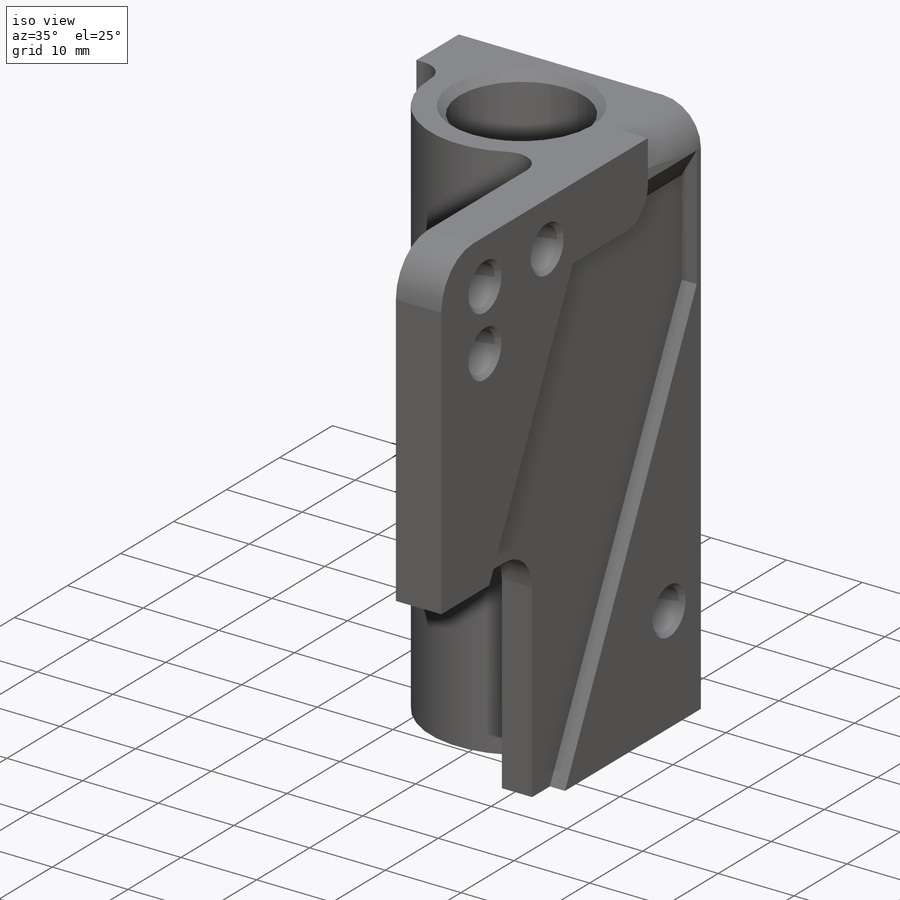
[diagram: iso view]
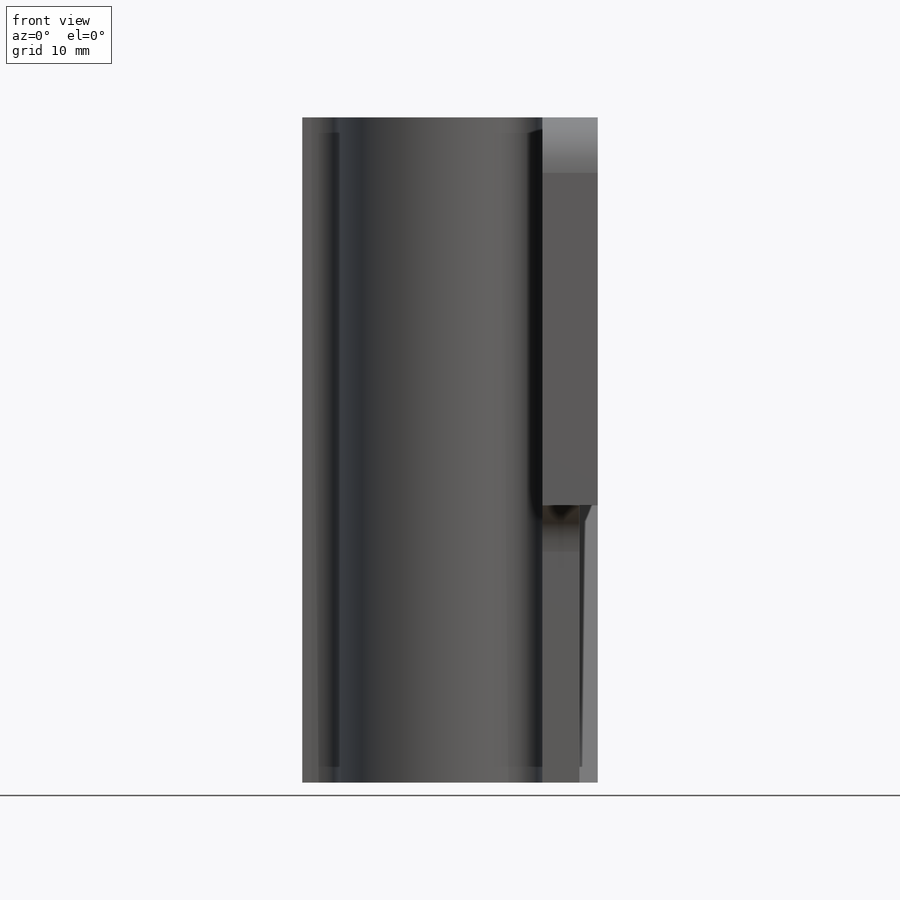
[diagram: front view]
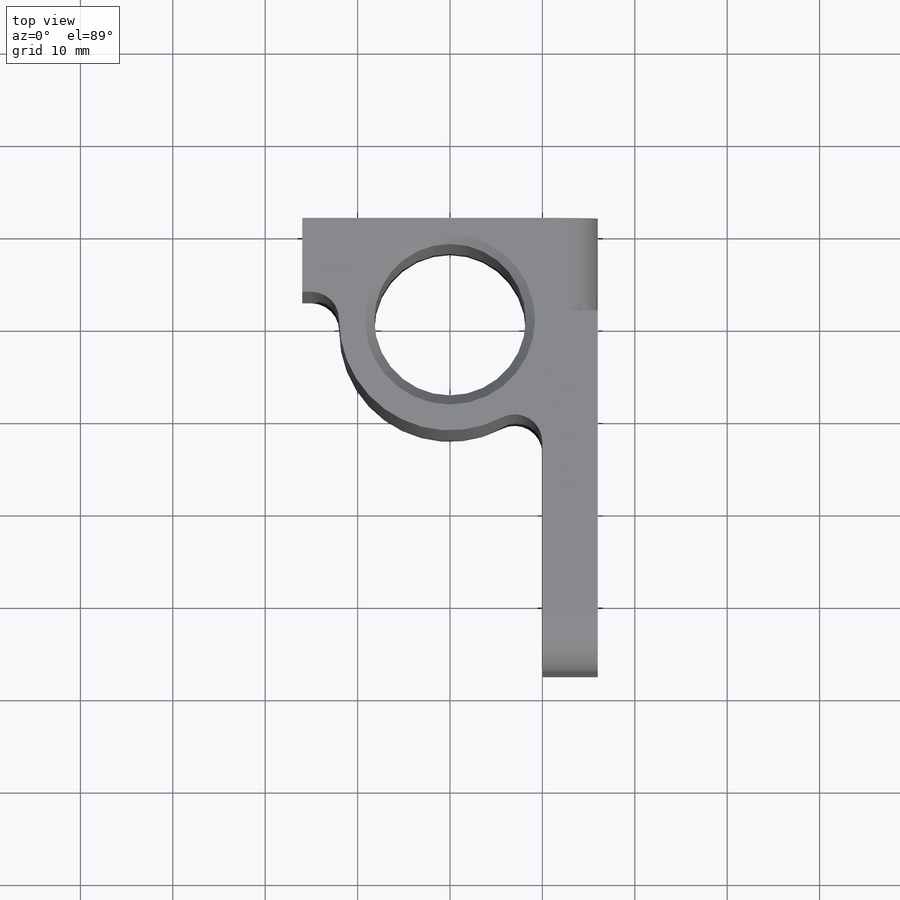
[diagram: top view]
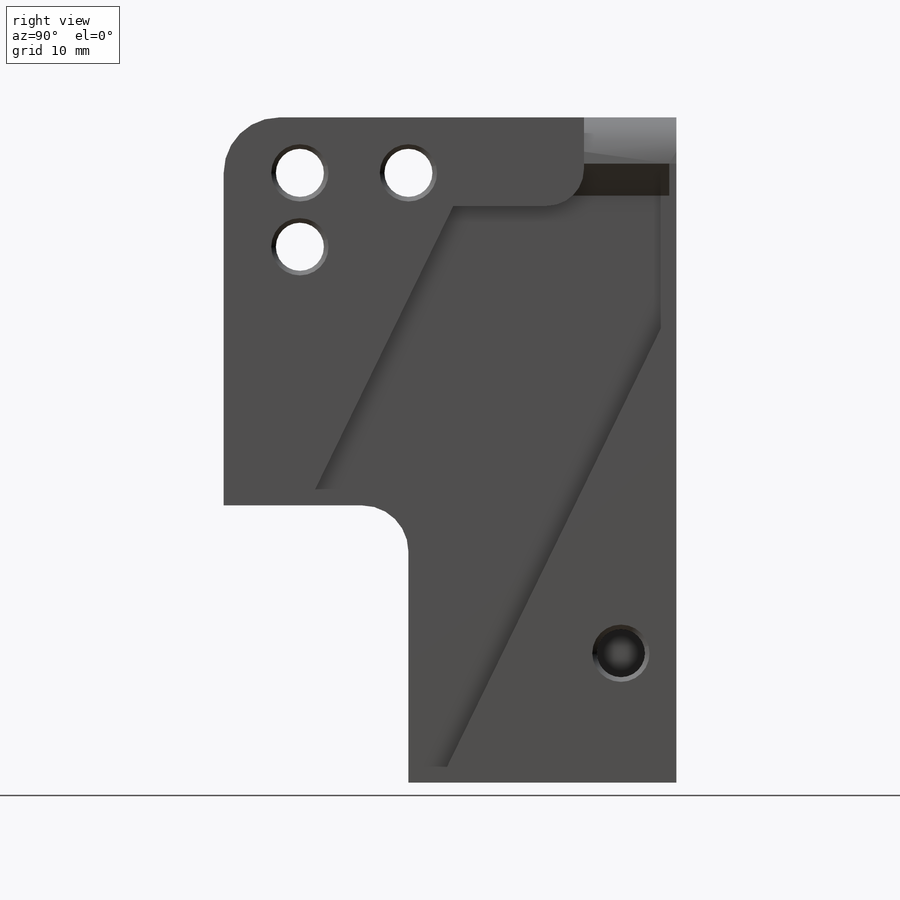
[diagram: right view]
SOLIDWORKS PART (.sldprt)
format: sldprt  version: not decoded by parser v0  size: 313,856 bytes
history: native  units: mm
features: sketch x8, cut_extrude x7, chamfer x3, fillet x2, material x1, extrude x1 (+11 scaffold rows collapsed)
feature tree (33):
  scaffold x11  (default folders/planes/origin — collapsed)
  material  "Material <not specified>"
  sketch  "Sketch1"  dims[c1.D1=16.4mm c1.D2=12.0mm c1.D6=3.0mm c1.D8=5.0mm c2.D6=3.0mm c2.D8=5.0mm c2.D10=2.0mm c2.D11=3.0mm c2.D12=5.0mm c2.D7=3.0mm c2.D3=32.0mm c2.D4=8.0mm c2.D5=11.0mm c3.D7=10.5mm c3.D4=8.0mm c3.D9=16.0mm c3.D8=49.0mm c3.D10=6.0mm]
  extrude  "Boss-Extrude1"  Depth=72mm
  sketch  "Sketch2"  dims[c1.D1=5.2mm c1.D2=5.0mm c1.D3=5.0mm c1.D4=30.0mm c2.D3=5.0mm]
  cut_extrude  "Cut-Extrude1"  Depth=6mm
  chamfer  "Chamfer1"  Distance=0.5mm Angle=45deg
  chamfer  "Chamfer2"  Distance=1mm Angle=45deg
  sketch  "Sketch3"  dims[D3=5.2mm D1=8.0mm D2=8.25mm D4=6.0mm]
  cut_extrude  "Cut-Extrude2"  [1 undecoded]
  sketch  "Sketch4"
  cut_extrude  "Cut-Extrude3"  Depth=10mm
  sketch  "Sketch5"  dims[c1.D1=26.0mm c1.D2=36.0mm c1.D3=~17.225378mm c2.D3=26.0deg c2.D4=17.0mm]
  cut_extrude  "Cut-Extrude4"  Depth=2mm
  sketch  "Sketch6"  dims[D3=5.0mm D1=20.0mm D2=30.0mm]
  cut_extrude  "Cut-Extrude5"  Depth=10mm
  sketch  "Sketch8"  dims[c1.D1=~7.277056mm c2.D1=30.0deg]
  cut_extrude  "Cut-Extrude6"  [1 undecoded]
  fillet  "Fillet1"  Radius=4mm
  fillet  "Fillet2"  Radius=6mm
  sketch  "Sketch9"  dims[D5=5.2mm D1=6.0mm D2=29.0mm D3=6.0mm D4=14.0mm]
  cut_extrude  "Cut-Extrude7"  Depth=6mm
  chamfer  "Chamfer3"  Distance=0.5mm Angle=45deg
decode coverage: 18 of 21 modeling features carry decoded parameters
note: ~ marks probable driven/reference dimensions
note: 2 parameter values undecoded
note: suppression state not decoded; provenance and decode notes live in map.json
